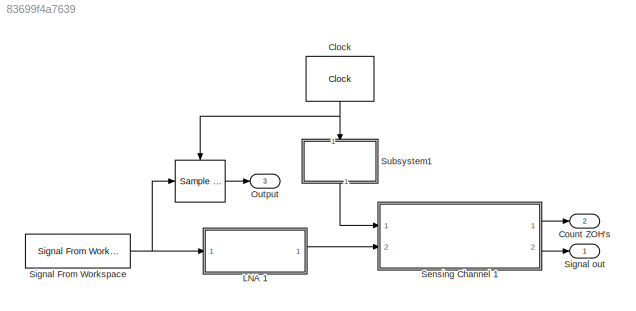
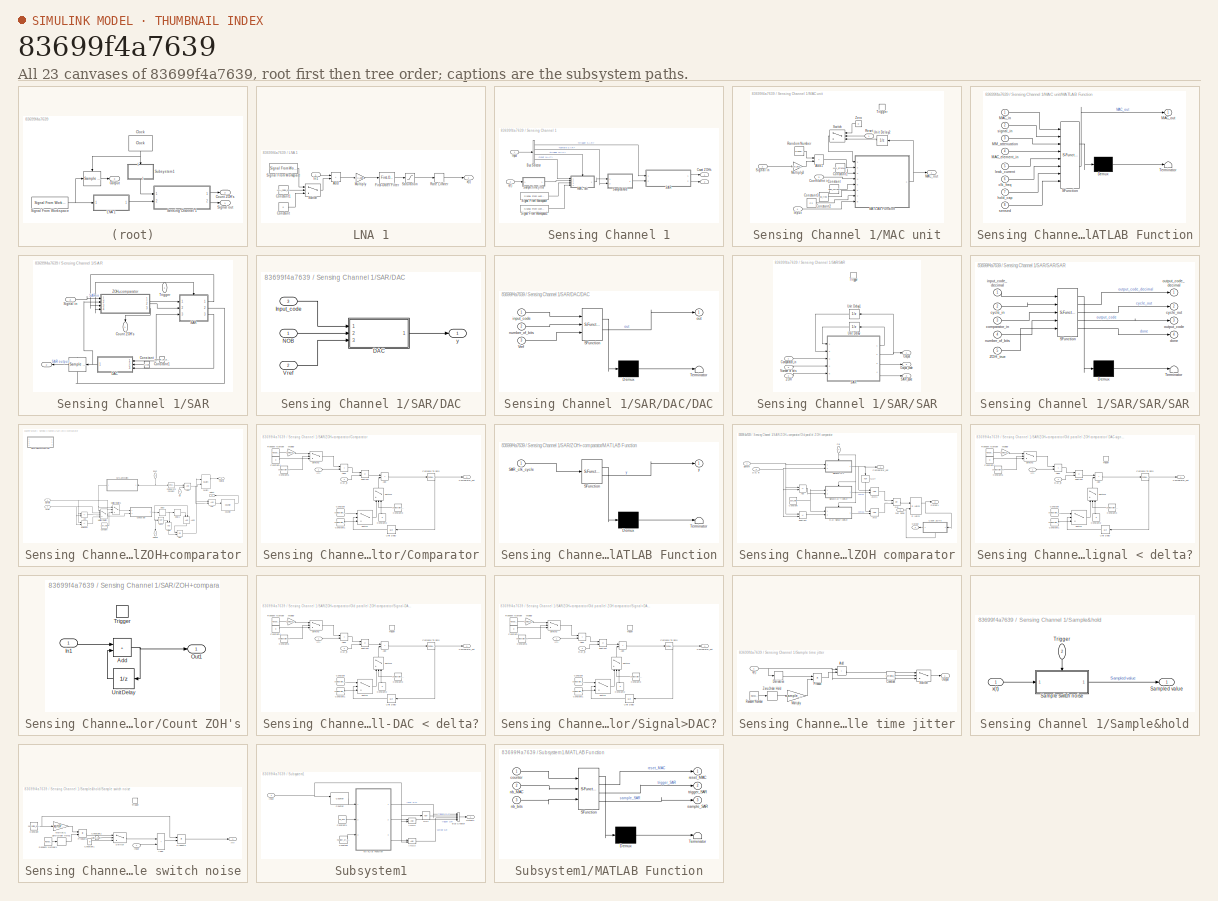
[diagram: thumbnail index - all 23 canvases of the model, root first then tree order]
MODEL slx_83699f4a7639
KIND model
CONFIG AbsTol = auto
CONFIG EnableMultiTasking = off
CONFIG FixedStep = auto
CONFIG MaxStep = auto
CONFIG MinStep = auto
CONFIG RelTol = 1e-3
CONFIG SampleTimeConstraint = Unconstrained
CONFIG Solver = VariableStepAuto
CONFIG SolverName = VariableStepAuto
CONFIG StartTime = 0.0
CONFIG StopTime = 1
BLOCK [Reference]              REF=dspsigops/Sample
and Hold
  Ports = [1, 1, 0, 1]
  SourceBlock = dspsigops/Sample\nand Hold
  SourceProductName = DSP System Toolbox
  SourceType = Sample and Hold
BLOCK [Reference] Clock  REF=simulink_extras/Flip Flops/Clock
  Ports = [0, 1]
  SourceBlock = simulink_extras/Flip Flops/Clock
  SourceProductBaseCode = SL
  SourceType = Digital clock
BLOCK [Outport] Count ZOH's
  Port = 2
BLOCK [SubSystem] LNA 1
  Ports = [1, 1]
  RequestExecContextInheritance = off
BLOCK [Sum] LNA 1/Add
  IconShape = rectangular
  Ports = [2, 1]
BLOCK [Constant] LNA 1/Constant
  Value = 0
BLOCK [Constant] LNA 1/Constant1
  Value = LNA_noise_on
BLOCK [Reference] LNA 1/First-Order Filter  REF=spsFirstOrderFilterLib/First-Order
Filter
  Ports = [1, 1]
  SourceBlock = spsFirstOrderFilterLib/First-Order\nFilter
  SourceProductBaseCode = PS
  SourceType = First-Order Filter
BLOCK [Inport] LNA 1/In1
BLOCK [Gain] LNA 1/Multiply
  Gain = LNA_gain
BLOCK [RateLimiter] LNA 1/Rate Limiter
  FallingSlewLimit = -LNA_SR
  InitialCondition = (LNA_noise_vector(1,1)+double(ADC_input(1,1)))*LNA_gain
  RisingSlewLimit = LNA_SR
  SampleTimeMode = inherited
BLOCK [Saturate] LNA 1/Saturation
  LowerLimit = 0
  UpperLimit = Vref
BLOCK [Reference] LNA 1/Signal From Workspace  REF=dspsrcs4/Signal From
Workspace
  Ports = [0, 1]
  SourceBlock = dspsrcs4/Signal From\nWorkspace
  SourceProductBaseCode = DS
  SourceType = Signal From Workspace
BLOCK [Switch] LNA 1/Switch
  Criteria = u2 > Threshold
  InputSameDT = off
  SaturateOnIntegerOverflow = off
BLOCK [Outport] LNA 1/x(t)
BLOCK [Outport] Output
  Port = 3
BLOCK [SubSystem] Sensing Channel 1
  Ports = [2, 2]
  RequestExecContextInheritance = off
BLOCK [Outport] Sensing Channel 1/ 
  Port = 2
BLOCK [BusSelector] Sensing Channel 1/Bus Selector
  OutputSignals = trigger SAR,sample SAR,trigger MAC,reset MAC
  Ports = [1, 4]
BLOCK [Outport] Sensing Channel 1/Count ZOH's
BLOCK [Inport] Sensing Channel 1/Input
BLOCK [SubSystem] Sensing Channel 1/MAC unit
  Ports = [4, 1, 0, 1]
  RequestExecContextInheritance = off
BLOCK [Sum] Sensing Channel 1/MAC unit/Add1
  IconShape = rectangular
  Ports = [2, 1]
BLOCK [Inport] Sensing Channel 1/MAC unit/Coefficient in
  Port = 3
BLOCK [Constant] Sensing Channel 1/MAC unit/Constant
  Value = leak_current
BLOCK [Constant] Sensing Channel 1/MAC unit/Constant1
  Value = MM_attenuation_coeff
BLOCK [Constant] Sensing Channel 1/MAC unit/Constant2
  Value = clk_freq
BLOCK [Constant] Sensing Channel 1/MAC unit/Constant3
  Value = C2
BLOCK [Inport] Sensing Channel 1/MAC unit/Input
  Port = 4
BLOCK [Outport] Sensing Channel 1/MAC unit/MAC_out
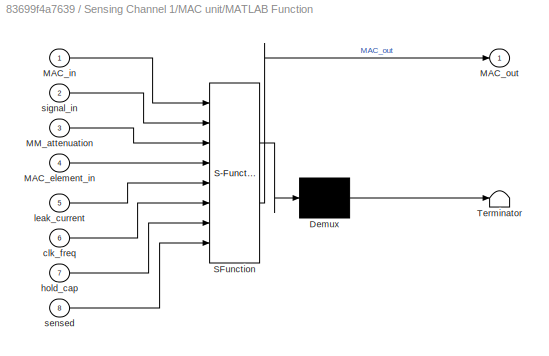
BLOCK [SubSystem] Sensing Channel 1/MAC unit/MATLAB Function
  ErrorFcn = Stateflow.Translate.translate
  PermitHierarchicalResolution = ExplicitOnly
  Ports = [8, 1]
  RequestExecContextInheritance = off
  SFBlockType = MATLAB Function
  TreatAsAtomicUnit = on
BLOCK [Demux] Sensing Channel 1/MAC unit/MATLAB Function/ Demux 
  Outputs = 1
  Ports = [1, 1]
BLOCK [S-Function] Sensing Channel 1/MAC unit/MATLAB Function/ SFunction 
  EnableBusSupport = on
  FunctionName = sf_sfun
  PortCounts = [8 2]
  Ports = [8, 2]
  SFcnIsStateOwnerBlock = off
  SFunctionDeploymentMode = off
  Tag = Stateflow S-Function 5
BLOCK [Terminator] Sensing Channel 1/MAC unit/MATLAB Function/ Terminator 
BLOCK [Inport] Sensing Channel 1/MAC unit/MATLAB Function/MAC_element_in
  Port = 4
BLOCK [Inport] Sensing Channel 1/MAC unit/MATLAB Function/MAC_in
BLOCK [Outport] Sensing Channel 1/MAC unit/MATLAB Function/MAC_out
BLOCK [Inport] Sensing Channel 1/MAC unit/MATLAB Function/MM_attenuation
  Port = 3
BLOCK [Inport] Sensing Channel 1/MAC unit/MATLAB Function/clk_freq
  Port = 6
BLOCK [Inport] Sensing Channel 1/MAC unit/MATLAB Function/hold_cap
  Port = 7
BLOCK [Inport] Sensing Channel 1/MAC unit/MATLAB Function/leak_current
  Port = 5
BLOCK [Inport] Sensing Channel 1/MAC unit/MATLAB Function/sensed
  Port = 8
BLOCK [Inport] Sensing Channel 1/MAC unit/MATLAB Function/signal_in
  Port = 2
BLOCK [Gain] Sensing Channel 1/MAC unit/Multiply3
  Gain = MM_incomplete_transfer_coeff
BLOCK [RandomNumber] Sensing Channel 1/MAC unit/Random Number
  Seed = 1*sim_number
  Variance = MM_sampling_noise
BLOCK [Inport] Sensing Channel 1/MAC unit/Reset
BLOCK [Inport] Sensing Channel 1/MAC unit/Signal in
  Port = 2
BLOCK [Switch] Sensing Channel 1/MAC unit/Switch
  Criteria = u2 > Threshold
  InputSameDT = off
  SaturateOnIntegerOverflow = off
BLOCK [TriggerPort] Sensing Channel 1/MAC unit/Trigger
  PortDimensions = 1
  Ports = []
  StatesWhenEnabling = held
  VariantControl = Variant
BLOCK [UnitDelay] Sensing Channel 1/MAC unit/Unit Delay2
  HasFrameUpgradeWarning = on
  InitialCondition = 1
  SampleTime = -1
BLOCK [Constant] Sensing Channel 1/MAC unit/Zero
  OutDataTypeStr = Inherit: Inherit via back propagation
  Value = 0
BLOCK [SubSystem] Sensing Channel 1/SAR
  Ports = [2, 2]
  RequestExecContextInheritance = off
BLOCK [Outport] Sensing Channel 1/SAR/ 
  Port = 2
BLOCK [Reference] Sensing Channel 1/SAR/             REF=dspsigops/Sample
and Hold
  Ports = [1, 1, 0, 1]
  SourceBlock = dspsigops/Sample\nand Hold
  SourceProductName = DSP System Toolbox
  SourceType = Sample and Hold
BLOCK [Constant] Sensing Channel 1/SAR/Constant
  Value = Vref
BLOCK [Constant] Sensing Channel 1/SAR/Constant1
  Value = number_of_bits
BLOCK [Outport] Sensing Channel 1/SAR/Count ZOH's
BLOCK [SubSystem] Sensing Channel 1/SAR/DAC
  Ports = [3, 1]
  RequestExecContextInheritance = off
  TreatAsAtomicUnit = on
BLOCK [SubSystem] Sensing Channel 1/SAR/DAC/DAC
  ErrorFcn = Stateflow.Translate.translate
  PermitHierarchicalResolution = ExplicitOnly
  Ports = [3, 1]
  RequestExecContextInheritance = off
  SFBlockType = MATLAB Function
  TreatAsAtomicUnit = on
BLOCK [Demux] Sensing Channel 1/SAR/DAC/DAC/ Demux 
  Outputs = 1
  Ports = [1, 1]
BLOCK [S-Function] Sensing Channel 1/SAR/DAC/DAC/ SFunction 
  EnableBusSupport = on
  FunctionName = sf_sfun
  PortCounts = [3 2]
  Ports = [3, 2]
  SFcnIsStateOwnerBlock = off
  SFunctionDeploymentMode = off
  Tag = Stateflow S-Function 2
BLOCK [Terminator] Sensing Channel 1/SAR/DAC/DAC/ Terminator 
BLOCK [Inport] Sensing Channel 1/SAR/DAC/DAC/Vref
  Port = 3
BLOCK [Inport] Sensing Channel 1/SAR/DAC/DAC/input_code
BLOCK [Inport] Sensing Channel 1/SAR/DAC/DAC/number_of_bits
  Port = 2
BLOCK [Outport] Sensing Channel 1/SAR/DAC/DAC/out
BLOCK [Inport] Sensing Channel 1/SAR/DAC/Input_code
  Port = 3
BLOCK [Inport] Sensing Channel 1/SAR/DAC/NOB
BLOCK [Inport] Sensing Channel 1/SAR/DAC/Vref
  Port = 2
BLOCK [Outport] Sensing Channel 1/SAR/DAC/y
BLOCK [SubSystem] Sensing Channel 1/SAR/SAR
  Ports = [3, 3, 0, 1]
  RequestExecContextInheritance = off
  TreatAsAtomicUnit = on
BLOCK [Inport] Sensing Channel 1/SAR/SAR/Comparator_in
  LatchByDelayingOutsideSignal = on
BLOCK [Inport] Sensing Channel 1/SAR/SAR/Number of bits
  Port = 3
BLOCK [Outport] Sensing Channel 1/SAR/SAR/Output
BLOCK [Outport] Sensing Channel 1/SAR/SAR/Output_code
  InitialOutput = zeros(number_of_bits, 1)
  Port = 3
  VarSizeSig = Yes
BLOCK [SubSystem] Sensing Channel 1/SAR/SAR/SAR
  ErrorFcn = Stateflow.Translate.translate
  PermitHierarchicalResolution = ExplicitOnly
  Ports = [5, 4]
  RequestExecContextInheritance = off
  SFBlockType = MATLAB Function
  TreatAsAtomicUnit = on
BLOCK [Demux] Sensing Channel 1/SAR/SAR/SAR/ Demux 
  Outputs = 1
  Ports = [1, 1]
BLOCK [S-Function] Sensing Channel 1/SAR/SAR/SAR/ SFunction 
  EnableBusSupport = on
  FunctionName = sf_sfun
  PortCounts = [5 5]
  Ports = [5, 5]
  SFcnIsStateOwnerBlock = off
  SFunctionDeploymentMode = off
  Tag = Stateflow S-Function 3
BLOCK [Terminator] Sensing Channel 1/SAR/SAR/SAR/ Terminator 
BLOCK [Inport] Sensing Channel 1/SAR/SAR/SAR/ZOH_true
  Port = 5
BLOCK [Inport] Sensing Channel 1/SAR/SAR/SAR/comparator_in
  Port = 3
BLOCK [Inport] Sensing Channel 1/SAR/SAR/SAR/cycle_in
  Port = 2
BLOCK [Outport] Sensing Channel 1/SAR/SAR/SAR/cycle_out
  Port = 2
BLOCK [Outport] Sensing Channel 1/SAR/SAR/SAR/done
  Port = 4
BLOCK [Inport] Sensing Channel 1/SAR/SAR/SAR/input_code_decimal
BLOCK [Inport] Sensing Channel 1/SAR/SAR/SAR/number_of_bits
  Port = 4
BLOCK [Outport] Sensing Channel 1/SAR/SAR/SAR/output_code
  Port = 3
BLOCK [Outport] Sensing Channel 1/SAR/SAR/SAR/output_code_decimal
BLOCK [Outport] Sensing Channel 1/SAR/SAR/SAR_done
  InitialOutput = 0
  Port = 2
BLOCK [TriggerPort] Sensing Channel 1/SAR/SAR/Trigger
  Ports = []
  StatesWhenEnabling = held
  VariantControl = Variant
BLOCK [UnitDelay] Sensing Channel 1/SAR/SAR/Unit Delay
  HasFrameUpgradeWarning = on
  SampleTime = -1
BLOCK [UnitDelay] Sensing Channel 1/SAR/SAR/Unit Delay1
  HasFrameUpgradeWarning = on
  SampleTime = -1
BLOCK [Inport] Sensing Channel 1/SAR/SAR/ZOH
  LatchByDelayingOutsideSignal = on
  Port = 2
BLOCK [Inport] Sensing Channel 1/SAR/Signal in
  Port = 2
BLOCK [Inport] Sensing Channel 1/SAR/Trigger
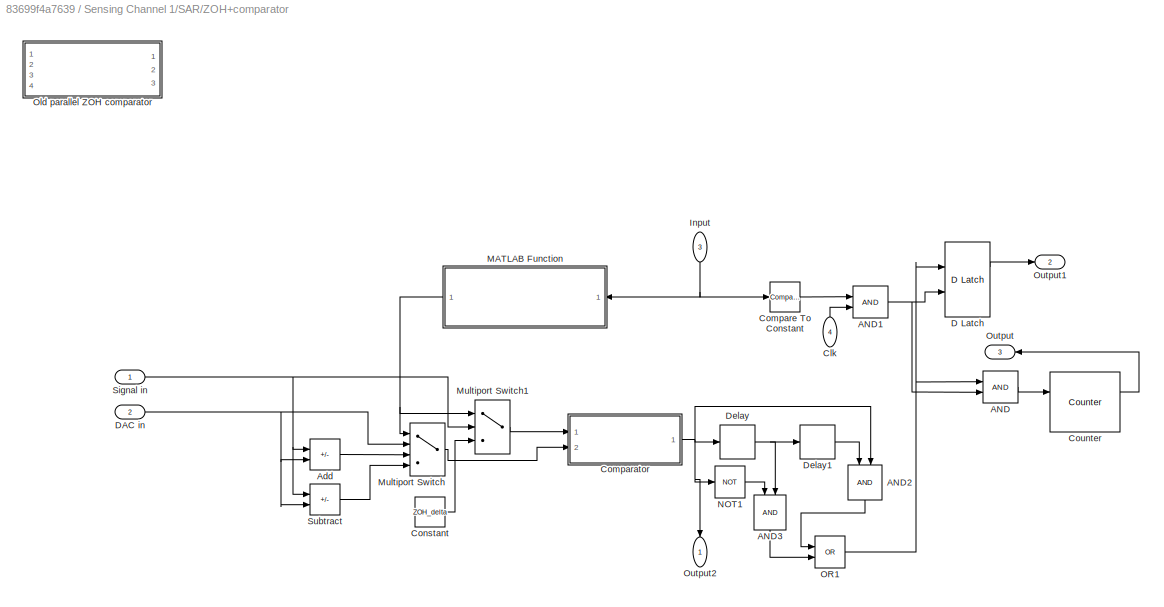
BLOCK [SubSystem] Sensing Channel 1/SAR/ZOH+comparator
  Ports = [4, 3]
  RequestExecContextInheritance = off
BLOCK [Logic] Sensing Channel 1/SAR/ZOH+comparator/AND
  AllPortsSameDT = off
  IconShape = distinctive
  OutDataTypeStr = boolean
  Ports = [2, 1]
BLOCK [Logic] Sensing Channel 1/SAR/ZOH+comparator/AND1
  AllPortsSameDT = off
  IconShape = distinctive
  OutDataTypeStr = boolean
  Ports = [2, 1]
BLOCK [Logic] Sensing Channel 1/SAR/ZOH+comparator/AND2
  AllPortsSameDT = off
  IconShape = distinctive
  OutDataTypeStr = boolean
  Ports = [2, 1]
BLOCK [Logic] Sensing Channel 1/SAR/ZOH+comparator/AND3
  AllPortsSameDT = off
  IconShape = distinctive
  OutDataTypeStr = boolean
  Ports = [2, 1]
BLOCK [Sum] Sensing Channel 1/SAR/ZOH+comparator/Add
  IconShape = rectangular
  Inputs = +-
  Ports = [2, 1]
BLOCK [Inport] Sensing Channel 1/SAR/ZOH+comparator/Clk
  Port = 4
BLOCK [SubSystem] Sensing Channel 1/SAR/ZOH+comparator/Comparator
  Ports = [2, 1]
  RequestExecContextInheritance = off
  TreatAsAtomicUnit = on
BLOCK [Sum] Sensing Channel 1/SAR/ZOH+comparator/Comparator/Add
  IconShape = rectangular
  Ports = [2, 1]
BLOCK [Sum] Sensing Channel 1/SAR/ZOH+comparator/Comparator/Add1
  IconShape = rectangular
  Ports = [2, 1]
BLOCK [Outport] Sensing Channel 1/SAR/ZOH+comparator/Comparator/Comparator_out
BLOCK [Reference] Sensing Channel 1/SAR/ZOH+comparator/Comparator/Compare To Zero  REF=simulink/Logic and Bit
Operations/Compare
To Zero
  Ports = [1, 1]
  SourceBlock = simulink/Logic and Bit\nOperations/Compare\nTo Zero
  SourceProductBaseCode = SL
  SourceType = Compare To Zero
BLOCK [Constant] Sensing Channel 1/SAR/ZOH+comparator/Comparator/Constant
  Value = comparator_high_offset
BLOCK [Constant] Sensing Channel 1/SAR/ZOH+comparator/Comparator/Constant1
  Value = comparator_low_offset
BLOCK [Constant] Sensing Channel 1/SAR/ZOH+comparator/Comparator/Constant2
  Value = 0
BLOCK [Constant] Sensing Channel 1/SAR/ZOH+comparator/Comparator/Constant3
  Value = comparator_offset_on
BLOCK [Constant] Sensing Channel 1/SAR/ZOH+comparator/Comparator/Constant4
  Value = 0
BLOCK [Constant] Sensing Channel 1/SAR/ZOH+comparator/Comparator/Constant5
  Value = comparator_noise_on
BLOCK [Inport] Sensing Channel 1/SAR/ZOH+comparator/Comparator/DAC_in
  Port = 2
BLOCK [Gain] Sensing Channel 1/SAR/ZOH+comparator/Comparator/Multiply
  Gain = comparator_noise_rms
BLOCK [RandomNumber] Sensing Channel 1/SAR/ZOH+comparator/Comparator/Random Number
  SampleTime = 1/clk_freq
  Seed = 4*sim_number
BLOCK [Sum] Sensing Channel 1/SAR/ZOH+comparator/Comparator/Subtract
  IconShape = rectangular
  Inputs = +-
  Ports = [2, 1]
BLOCK [Switch] Sensing Channel 1/SAR/ZOH+comparator/Comparator/Switch
  Criteria = u2 > Threshold
  InputSameDT = off
  SaturateOnIntegerOverflow = off
BLOCK [Switch] Sensing Channel 1/SAR/ZOH+comparator/Comparator/Switch1
  Criteria = u2 > Threshold
  InputSameDT = off
  SaturateOnIntegerOverflow = off
BLOCK [Switch] Sensing Channel 1/SAR/ZOH+comparator/Comparator/Switch2
  Criteria = u2 > Threshold
  InputSameDT = off
  SaturateOnIntegerOverflow = off
BLOCK [UnitDelay] Sensing Channel 1/SAR/ZOH+comparator/Comparator/Unit Delay
  HasFrameUpgradeWarning = on
  SampleTime = -1
BLOCK [Inport] Sensing Channel 1/SAR/ZOH+comparator/Comparator/y(t)
BLOCK [Reference] Sensing Channel 1/SAR/ZOH+comparator/Compare To Constant  REF=simulink/Logic and Bit
Operations/Compare
To Constant
  Ports = [1, 1]
  SourceBlock = simulink/Logic and Bit\nOperations/Compare\nTo Constant
  SourceProductBaseCode = SL
  SourceType = Compare To Constant
BLOCK [Constant] Sensing Channel 1/SAR/ZOH+comparator/Constant
  Value = ZOH_delta
BLOCK [Reference] Sensing Channel 1/SAR/ZOH+comparator/Counter  REF=dspswit3/Counter
  Ports = [2, 2]
  SourceBlock = dspswit3/Counter
  SourceProductBaseCode = DS
  SourceType = Counter
BLOCK [Reference] Sensing Channel 1/SAR/ZOH+comparator/D Latch  REF=simulink_extras/Flip Flops/D Latch
  Ports = [2, 2]
  SourceBlock = simulink_extras/Flip Flops/D Latch
  SourceProductBaseCode = SL
  SourceType = DLatch
BLOCK [Inport] Sensing Channel 1/SAR/ZOH+comparator/DAC in
  Port = 2
BLOCK [Delay] Sensing Channel 1/SAR/ZOH+comparator/Delay
  InputPortMap = u0
  Ports = [1, 1]
BLOCK [Delay] Sensing Channel 1/SAR/ZOH+comparator/Delay1
  InputPortMap = u0
  Ports = [1, 1]
BLOCK [Inport] Sensing Channel 1/SAR/ZOH+comparator/Input
  Port = 3
BLOCK [SubSystem] Sensing Channel 1/SAR/ZOH+comparator/MATLAB Function
  ErrorFcn = Stateflow.Translate.translate
  PermitHierarchicalResolution = ExplicitOnly
  Ports = [1, 1]
  RequestExecContextInheritance = off
  SFBlockType = MATLAB Function
  TreatAsAtomicUnit = on
BLOCK [Demux] Sensing Channel 1/SAR/ZOH+comparator/MATLAB Function/ Demux 
  Outputs = 1
  Ports = [1, 1]
BLOCK [S-Function] Sensing Channel 1/SAR/ZOH+comparator/MATLAB Function/ SFunction 
  EnableBusSupport = on
  FunctionName = sf_sfun
  PortCounts = [1 2]
  Ports = [1, 2]
  SFcnIsStateOwnerBlock = off
  SFunctionDeploymentMode = off
  Tag = Stateflow S-Function 1
BLOCK [Terminator] Sensing Channel 1/SAR/ZOH+comparator/MATLAB Function/ Terminator 
BLOCK [Inport] Sensing Channel 1/SAR/ZOH+comparator/MATLAB Function/SAR_clk_cycle
BLOCK [Outport] Sensing Channel 1/SAR/ZOH+comparator/MATLAB Function/y
BLOCK [MultiPortSwitch] Sensing Channel 1/SAR/ZOH+comparator/Multiport Switch
  InputSameDT = off
  Ports = [4, 1]
  SaturateOnIntegerOverflow = off
BLOCK [MultiPortSwitch] Sensing Channel 1/SAR/ZOH+comparator/Multiport Switch1
  DiagnosticForDefault = None
  InputSameDT = off
  Inputs = 2
  Ports = [3, 1]
  SaturateOnIntegerOverflow = off
BLOCK [Logic] Sensing Channel 1/SAR/ZOH+comparator/NOT1
  AllPortsSameDT = off
  IconShape = distinctive
  Operator = NOT
  OutDataTypeStr = boolean
  Ports = [1, 1]
BLOCK [Logic] Sensing Channel 1/SAR/ZOH+comparator/OR1
  AllPortsSameDT = off
  IconShape = distinctive
  Operator = OR
  OutDataTypeStr = boolean
  Ports = [2, 1]
BLOCK [SubSystem] Sensing Channel 1/SAR/ZOH+comparator/Old parallel ZOH comparator
  Commented = on
  Ports = [4, 3]
  RequestExecContextInheritance = off
BLOCK [SubSystem] Sensing Channel 1/SAR/ZOH+comparator/Old parallel ZOH comparator/ DAC-signal < delta?
  Ports = [2, 1, 0, 1]
  RequestExecContextInheritance = off
  TreatAsAtomicUnit = on
BLOCK [Sum] Sensing Channel 1/SAR/ZOH+comparator/Old parallel ZOH comparator/ DAC-signal < delta?/Add
  IconShape = rectangular
  Ports = [2, 1]
BLOCK [Sum] Sensing Channel 1/SAR/ZOH+comparator/Old parallel ZOH comparator/ DAC-signal < delta?/Add1
  IconShape = rectangular
  Ports = [2, 1]
BLOCK [Outport] Sensing Channel 1/SAR/ZOH+comparator/Old parallel ZOH comparator/ DAC-signal < delta?/Comparator_out
BLOCK [Reference] Sensing Channel 1/SAR/ZOH+comparator/Old parallel ZOH comparator/ DAC-signal < delta?/Compare To Zero  REF=simulink/Logic and Bit
Operations/Compare
To Zero
  Ports = [1, 1]
  SourceBlock = simulink/Logic and Bit\nOperations/Compare\nTo Zero
  SourceProductBaseCode = SL
  SourceType = Compare To Zero
BLOCK [Constant] Sensing Channel 1/SAR/ZOH+comparator/Old parallel ZOH comparator/ DAC-signal < delta?/Constant
  Value = comparator_high_offset
BLOCK [Constant] Sensing Channel 1/SAR/ZOH+comparator/Old parallel ZOH comparator/ DAC-signal < delta?/Constant1
  Value = comparator_low_offset
BLOCK [Constant] Sensing Channel 1/SAR/ZOH+comparator/Old parallel ZOH comparator/ DAC-signal < delta?/Constant2
  Value = 0
BLOCK [Constant] Sensing Channel 1/SAR/ZOH+comparator/Old parallel ZOH comparator/ DAC-signal < delta?/Constant3
  Value = comparator_offset_on
BLOCK [Constant] Sensing Channel 1/SAR/ZOH+comparator/Old parallel ZOH comparator/ DAC-signal < delta?/Constant4
  Value = 0
BLOCK [Constant] Sensing Channel 1/SAR/ZOH+comparator/Old parallel ZOH comparator/ DAC-signal < delta?/Constant5
  Value = comparator_noise_on
BLOCK [Inport] Sensing Channel 1/SAR/ZOH+comparator/Old parallel ZOH comparator/ DAC-signal < delta?/DAC_in
  Port = 2
BLOCK [Gain] Sensing Channel 1/SAR/ZOH+comparator/Old parallel ZOH comparator/ DAC-signal < delta?/Multiply
  Gain = comparator_noise_rms
BLOCK [RandomNumber] Sensing Channel 1/SAR/ZOH+comparator/Old parallel ZOH comparator/ DAC-signal < delta?/Random Number
BLOCK [Sum] Sensing Channel 1/SAR/ZOH+comparator/Old parallel ZOH comparator/ DAC-signal < delta?/Subtract
  IconShape = rectangular
  Inputs = +-
  Ports = [2, 1]
BLOCK [Switch] Sensing Channel 1/SAR/ZOH+comparator/Old parallel ZOH comparator/ DAC-signal < delta?/Switch
  Criteria = u2 > Threshold
  InputSameDT = off
  SaturateOnIntegerOverflow = off
BLOCK [Switch] Sensing Channel 1/SAR/ZOH+comparator/Old parallel ZOH comparator/ DAC-signal < delta?/Switch1
  Criteria = u2 > Threshold
  InputSameDT = off
  SaturateOnIntegerOverflow = off
BLOCK [Switch] Sensing Channel 1/SAR/ZOH+comparator/Old parallel ZOH comparator/ DAC-signal < delta?/Switch2
  Criteria = u2 > Threshold
  InputSameDT = off
  SaturateOnIntegerOverflow = off
BLOCK [TriggerPort] Sensing Channel 1/SAR/ZOH+comparator/Old parallel ZOH comparator/ DAC-signal < delta?/Trigger
  Ports = []
  StatesWhenEnabling = held
  VariantControl = Variant
BLOCK [UnitDelay] Sensing Channel 1/SAR/ZOH+comparator/Old parallel ZOH comparator/ DAC-signal < delta?/Unit Delay
  HasFrameUpgradeWarning = on
  SampleTime = -1
BLOCK [Inport] Sensing Channel 1/SAR/ZOH+comparator/Old parallel ZOH comparator/ DAC-signal < delta?/y(t)
BLOCK [Logic] Sensing Channel 1/SAR/ZOH+comparator/Old parallel ZOH comparator/AND
  AllPortsSameDT = off
  IconShape = distinctive
  OutDataTypeStr = boolean
  Ports = [2, 1]
BLOCK [Logic] Sensing Channel 1/SAR/ZOH+comparator/Old parallel ZOH comparator/AND1
  AllPortsSameDT = off
  IconShape = distinctive
  OutDataTypeStr = boolean
  Ports = [2, 1]
BLOCK [Sum] Sensing Channel 1/SAR/ZOH+comparator/Old parallel ZOH comparator/Add
  IconShape = rectangular
  Inputs = +-
  Ports = [2, 1]
BLOCK [Inport] Sensing Channel 1/SAR/ZOH+comparator/Old parallel ZOH comparator/Clk
  Port = 4
BLOCK [Outport] Sensing Channel 1/SAR/ZOH+comparator/Old parallel ZOH comparator/Comparator_out
BLOCK [Constant] Sensing Channel 1/SAR/ZOH+comparator/Old parallel ZOH comparator/Constant
  Value = ZOH_delta
BLOCK [SubSystem] Sensing Channel 1/SAR/ZOH+comparator/Old parallel ZOH comparator/Count ZOH's
  Ports = [1, 1, 0, 1]
  RequestExecContextInheritance = off
BLOCK [Sum] Sensing Channel 1/SAR/ZOH+comparator/Old parallel ZOH comparator/Count ZOH's/Add
  AccumDataTypeStr = double
  IconShape = rectangular
  OutDataTypeStr = double
  Ports = [2, 1]
BLOCK [Inport] Sensing Channel 1/SAR/ZOH+comparator/Old parallel ZOH comparator/Count ZOH's/In1
BLOCK [Outport] Sensing Channel 1/SAR/ZOH+comparator/Old parallel ZOH comparator/Count ZOH's/Out1
BLOCK [TriggerPort] Sensing Channel 1/SAR/ZOH+comparator/Old parallel ZOH comparator/Count ZOH's/Trigger
  PortDimensions = 1
  Ports = []
  StatesWhenEnabling = held
  VariantControl = Variant
BLOCK [UnitDelay] Sensing Channel 1/SAR/ZOH+comparator/Old parallel ZOH comparator/Count ZOH's/Unit Delay
  HasFrameUpgradeWarning = on
  SampleTime = -1
BLOCK [Reference] Sensing Channel 1/SAR/ZOH+comparator/Old parallel ZOH comparator/D Latch  REF=simulink_extras/Flip Flops/D Latch
  Ports = [2, 2]
  SourceBlock = simulink_extras/Flip Flops/D Latch
  SourceProductBaseCode = SL
  SourceType = DLatch
BLOCK [Inport] Sensing Channel 1/SAR/ZOH+comparator/Old parallel ZOH comparator/DAC in
  Port = 2
BLOCK [Logic] Sensing Channel 1/SAR/ZOH+comparator/Old parallel ZOH comparator/NOT
  AllPortsSameDT = off
  IconShape = distinctive
  Operator = NOT
  OutDataTypeStr = boolean
  Ports = [1, 1]
BLOCK [Logic] Sensing Channel 1/SAR/ZOH+comparator/Old parallel ZOH comparator/OR
  AllPortsSameDT = off
  IconShape = distinctive
  Operator = OR
  OutDataTypeStr = boolean
  Ports = [2, 1]
BLOCK [Outport] Sensing Channel 1/SAR/ZOH+comparator/Old parallel ZOH comparator/Output
  Port = 3
BLOCK [Outport] Sensing Channel 1/SAR/ZOH+comparator/Old parallel ZOH comparator/Output1
  Port = 2
BLOCK [Inport] Sensing Channel 1/SAR/ZOH+comparator/Old parallel ZOH comparator/SAR done
  Port = 3
BLOCK [Inport] Sensing Channel 1/SAR/ZOH+comparator/Old parallel ZOH comparator/Signal in
BLOCK [SubSystem] Sensing Channel 1/SAR/ZOH+comparator/Old parallel ZOH comparator/Signal-DAC < delta?
  Ports = [2, 1, 0, 1]
  RequestExecContextInheritance = off
  TreatAsAtomicUnit = on
BLOCK [Sum] Sensing Channel 1/SAR/ZOH+comparator/Old parallel ZOH comparator/Signal-DAC < delta?/Add
  IconShape = rectangular
  Ports = [2, 1]
BLOCK [Sum] Sensing Channel 1/SAR/ZOH+comparator/Old parallel ZOH comparator/Signal-DAC < delta?/Add1
  IconShape = rectangular
  Ports = [2, 1]
BLOCK [Outport] Sensing Channel 1/SAR/ZOH+comparator/Old parallel ZOH comparator/Signal-DAC < delta?/Comparator_out
BLOCK [Reference] Sensing Channel 1/SAR/ZOH+comparator/Old parallel ZOH comparator/Signal-DAC < delta?/Compare To Zero  REF=simulink/Logic and Bit
Operations/Compare
To Zero
  Ports = [1, 1]
  SourceBlock = simulink/Logic and Bit\nOperations/Compare\nTo Zero
  SourceProductBaseCode = SL
  SourceType = Compare To Zero
BLOCK [Constant] Sensing Channel 1/SAR/ZOH+comparator/Old parallel ZOH comparator/Signal-DAC < delta?/Constant
  Value = comparator_high_offset
BLOCK [Constant] Sensing Channel 1/SAR/ZOH+comparator/Old parallel ZOH comparator/Signal-DAC < delta?/Constant1
  Value = comparator_low_offset
BLOCK [Constant] Sensing Channel 1/SAR/ZOH+comparator/Old parallel ZOH comparator/Signal-DAC < delta?/Constant2
  Value = 0
BLOCK [Constant] Sensing Channel 1/SAR/ZOH+comparator/Old parallel ZOH comparator/Signal-DAC < delta?/Constant3
  Value = comparator_offset_on
BLOCK [Constant] Sensing Channel 1/SAR/ZOH+comparator/Old parallel ZOH comparator/Signal-DAC < delta?/Constant4
  Value = 0
BLOCK [Constant] Sensing Channel 1/SAR/ZOH+comparator/Old parallel ZOH comparator/Signal-DAC < delta?/Constant5
  Value = comparator_noise_on
BLOCK [Inport] Sensing Channel 1/SAR/ZOH+comparator/Old parallel ZOH comparator/Signal-DAC < delta?/DAC_in
  Port = 2
BLOCK [Gain] Sensing Channel 1/SAR/ZOH+comparator/Old parallel ZOH comparator/Signal-DAC < delta?/Multiply
  Gain = comparator_noise_rms
BLOCK [RandomNumber] Sensing Channel 1/SAR/ZOH+comparator/Old parallel ZOH comparator/Signal-DAC < delta?/Random Number
BLOCK [Sum] Sensing Channel 1/SAR/ZOH+comparator/Old parallel ZOH comparator/Signal-DAC < delta?/Subtract
  IconShape = rectangular
  Inputs = +-
  Ports = [2, 1]
BLOCK [Switch] Sensing Channel 1/SAR/ZOH+comparator/Old parallel ZOH comparator/Signal-DAC < delta?/Switch
  Criteria = u2 > Threshold
  InputSameDT = off
  SaturateOnIntegerOverflow = off
BLOCK [Switch] Sensing Channel 1/SAR/ZOH+comparator/Old parallel ZOH comparator/Signal-DAC < delta?/Switch1
  Criteria = u2 > Threshold
  InputSameDT = off
  SaturateOnIntegerOverflow = off
BLOCK [Switch] Sensing Channel 1/SAR/ZOH+comparator/Old parallel ZOH comparator/Signal-DAC < delta?/Switch2
  Criteria = u2 > Threshold
  InputSameDT = off
  SaturateOnIntegerOverflow = off
BLOCK [TriggerPort] Sensing Channel 1/SAR/ZOH+comparator/Old parallel ZOH comparator/Signal-DAC < delta?/Trigger
  Ports = []
  StatesWhenEnabling = held
  VariantControl = Variant
BLOCK [UnitDelay] Sensing Channel 1/SAR/ZOH+comparator/Old parallel ZOH comparator/Signal-DAC < delta?/Unit Delay
  HasFrameUpgradeWarning = on
  SampleTime = -1
BLOCK [Inport] Sensing Channel 1/SAR/ZOH+comparator/Old parallel ZOH comparator/Signal-DAC < delta?/y(t)
BLOCK [SubSystem] Sensing Channel 1/SAR/ZOH+comparator/Old parallel ZOH comparator/Signal>DAC?
  Ports = [2, 1, 0, 1]
  RequestExecContextInheritance = off
  TreatAsAtomicUnit = on
BLOCK [Sum] Sensing Channel 1/SAR/ZOH+comparator/Old parallel ZOH comparator/Signal>DAC?/Add
  IconShape = rectangular
  Ports = [2, 1]
BLOCK [Sum] Sensing Channel 1/SAR/ZOH+comparator/Old parallel ZOH comparator/Signal>DAC?/Add1
  IconShape = rectangular
  Ports = [2, 1]
BLOCK [Outport] Sensing Channel 1/SAR/ZOH+comparator/Old parallel ZOH comparator/Signal>DAC?/Comparator_out
BLOCK [Reference] Sensing Channel 1/SAR/ZOH+comparator/Old parallel ZOH comparator/Signal>DAC?/Compare To Zero  REF=simulink/Logic and Bit
Operations/Compare
To Zero
  Ports = [1, 1]
  SourceBlock = simulink/Logic and Bit\nOperations/Compare\nTo Zero
  SourceProductBaseCode = SL
  SourceType = Compare To Zero
BLOCK [Constant] Sensing Channel 1/SAR/ZOH+comparator/Old parallel ZOH comparator/Signal>DAC?/Constant
  Value = comparator_high_offset
BLOCK [Constant] Sensing Channel 1/SAR/ZOH+comparator/Old parallel ZOH comparator/Signal>DAC?/Constant1
  Value = comparator_low_offset
BLOCK [Constant] Sensing Channel 1/SAR/ZOH+comparator/Old parallel ZOH comparator/Signal>DAC?/Constant2
  Value = 0
BLOCK [Constant] Sensing Channel 1/SAR/ZOH+comparator/Old parallel ZOH comparator/Signal>DAC?/Constant3
  Value = comparator_offset_on
BLOCK [Constant] Sensing Channel 1/SAR/ZOH+comparator/Old parallel ZOH comparator/Signal>DAC?/Constant4
  Value = 0
BLOCK [Constant] Sensing Channel 1/SAR/ZOH+comparator/Old parallel ZOH comparator/Signal>DAC?/Constant5
  Value = comparator_noise_on
BLOCK [Inport] Sensing Channel 1/SAR/ZOH+comparator/Old parallel ZOH comparator/Signal>DAC?/DAC_in
  Port = 2
BLOCK [Gain] Sensing Channel 1/SAR/ZOH+comparator/Old parallel ZOH comparator/Signal>DAC?/Multiply
  Gain = comparator_noise_rms
BLOCK [RandomNumber] Sensing Channel 1/SAR/ZOH+comparator/Old parallel ZOH comparator/Signal>DAC?/Random Number
BLOCK [Sum] Sensing Channel 1/SAR/ZOH+comparator/Old parallel ZOH comparator/Signal>DAC?/Subtract
  IconShape = rectangular
  Inputs = +-
  Ports = [2, 1]
BLOCK [Switch] Sensing Channel 1/SAR/ZOH+comparator/Old parallel ZOH comparator/Signal>DAC?/Switch
  Criteria = u2 > Threshold
  InputSameDT = off
  SaturateOnIntegerOverflow = off
BLOCK [Switch] Sensing Channel 1/SAR/ZOH+comparator/Old parallel ZOH comparator/Signal>DAC?/Switch1
  Criteria = u2 > Threshold
  InputSameDT = off
  SaturateOnIntegerOverflow = off
BLOCK [Switch] Sensing Channel 1/SAR/ZOH+comparator/Old parallel ZOH comparator/Signal>DAC?/Switch2
  Criteria = u2 > Threshold
  InputSameDT = off
  SaturateOnIntegerOverflow = off
BLOCK [TriggerPort] Sensing Channel 1/SAR/ZOH+comparator/Old parallel ZOH comparator/Signal>DAC?/Trigger
  Ports = []
  StatesWhenEnabling = held
  VariantControl = Variant
BLOCK [UnitDelay] Sensing Channel 1/SAR/ZOH+comparator/Old parallel ZOH comparator/Signal>DAC?/Unit Delay
  HasFrameUpgradeWarning = on
  SampleTime = -1
BLOCK [Inport] Sensing Channel 1/SAR/ZOH+comparator/Old parallel ZOH comparator/Signal>DAC?/y(t)
BLOCK [Sum] Sensing Channel 1/SAR/ZOH+comparator/Old parallel ZOH comparator/Subtract
  IconShape = rectangular
  Inputs = -+
  Ports = [2, 1]
BLOCK [Outport] Sensing Channel 1/SAR/ZOH+comparator/Output
  Port = 3
BLOCK [Outport] Sensing Channel 1/SAR/ZOH+comparator/Output1
  Port = 2
BLOCK [Outport] Sensing Channel 1/SAR/ZOH+comparator/Output2
BLOCK [Inport] Sensing Channel 1/SAR/ZOH+comparator/Signal in
BLOCK [Sum] Sensing Channel 1/SAR/ZOH+comparator/Subtract
  IconShape = rectangular
  Inputs = -+
  Ports = [2, 1]
BLOCK [SubSystem] Sensing Channel 1/Sample time jitter
  Ports = [1, 1]
  RequestExecContextInheritance = off
BLOCK [Sum] Sensing Channel 1/Sample time jitter/Add
  IconShape = rectangular
  Ports = [2, 1]
BLOCK [Constant] Sensing Channel 1/Sample time jitter/Constant
  Value = sampling_jitter_on
BLOCK [Derivative] Sensing Channel 1/Sample time jitter/Derivative
BLOCK [Gain] Sensing Channel 1/Sample time jitter/Multiply
  Gain = sample_time_jitter
BLOCK [Outport] Sensing Channel 1/Sample time jitter/Output
BLOCK [Product] Sensing Channel 1/Sample time jitter/Product
  Ports = [2, 1]
BLOCK [RandomNumber] Sensing Channel 1/Sample time jitter/Random Number
  SampleTime = clk_period
  Seed = 2*sim_number
BLOCK [Switch] Sensing Channel 1/Sample time jitter/Switch
  Criteria = u2 > Threshold
  InputSameDT = off
  SaturateOnIntegerOverflow = off
BLOCK [ZeroOrderHold] Sensing Channel 1/Sample time jitter/Zero-Order Hold
  SampleTime = -1
BLOCK [Inport] Sensing Channel 1/Sample time jitter/x(t)
BLOCK [SubSystem] Sensing Channel 1/Sample&hold
  Ports = [2, 1]
  RequestExecContextInheritance = off
BLOCK [SubSystem] Sensing Channel 1/Sample&hold/Sample switch noise
  Ports = [1, 1, 0, 1]
  RequestExecContextInheritance = off
  TreatAsAtomicUnit = on
BLOCK [Sum] Sensing Channel 1/Sample&hold/Sample switch noise/Add1
  IconShape = rectangular
  Ports = [2, 1]
BLOCK [Constant] Sensing Channel 1/Sample&hold/Sample switch noise/Constant
  Value = sampling_gain
BLOCK [Constant] Sensing Channel 1/Sample&hold/Sample switch noise/Constant1
  Value = 0
BLOCK [Constant] Sensing Channel 1/Sample&hold/Sample switch noise/Constant2
  Value = switch_noise_on
BLOCK [Inport] Sensing Channel 1/Sample&hold/Sample switch noise/Input
BLOCK [Gain] Sensing Channel 1/Sample&hold/Sample switch noise/Multiply1
  Gain = sqrt(k*T/(sampling_gain*Cf_unit_cap*DAC_cap))
  OutDataTypeStr = Inherit: Same as input
BLOCK [Product] Sensing Channel 1/Sample&hold/Sample switch noise/Product1
  Ports = [2, 1]
BLOCK [Product] Sensing Channel 1/Sample&hold/Sample switch noise/Product2
  Ports = [2, 1]
BLOCK [RandomNumber] Sensing Channel 1/Sample&hold/Sample switch noise/Random Number1
  Seed = 3*sim_number
  Variance = switching_noise
BLOCK [Switch] Sensing Channel 1/Sample&hold/Sample switch noise/Switch
  Criteria = u2 > Threshold
  InputSameDT = off
  SaturateOnIntegerOverflow = off
BLOCK [TriggerPort] Sensing Channel 1/Sample&hold/Sample switch noise/Trigger
  Ports = []
  StatesWhenEnabling = held
  VariantControl = Variant
BLOCK [ZeroOrderHold] Sensing Channel 1/Sample&hold/Sample switch noise/Zero-Order Hold1
  SampleTime = -1
BLOCK [Outport] Sensing Channel 1/Sample&hold/Sample switch noise/y(t)
BLOCK [Outport] Sensing Channel 1/Sample&hold/Sampled value
BLOCK [Inport] Sensing Channel 1/Sample&hold/Trigger
  Port = 2
BLOCK [Inport] Sensing Channel 1/Sample&hold/x(t)
BLOCK [Reference] Sensing Channel 1/Signal From Workspace  REF=dspsrcs4/Signal From
Workspace
  Ports = [0, 1]
  SourceBlock = dspsrcs4/Signal From\nWorkspace
  SourceProductBaseCode = DS
  SourceType = Signal From Workspace
BLOCK [Reference] Sensing Channel 1/Signal From Workspace1  REF=dspsrcs4/Signal From
Workspace
  Ports = [0, 1]
  SourceBlock = dspsrcs4/Signal From\nWorkspace
  SourceProductBaseCode = DS
  SourceType = Signal From Workspace
BLOCK [Inport] Sensing Channel 1/x(t)
  Port = 2
BLOCK [Reference] Signal From Workspace  REF=dspsrcs4/Signal From
Workspace
  Ports = [0, 1]
  SourceBlock = dspsrcs4/Signal From\nWorkspace
  SourceProductBaseCode = DS
  SourceType = Signal From Workspace
BLOCK [Outport] Signal out
BLOCK [SubSystem] Subsystem1
  Ports = [1, 1]
  RequestExecContextInheritance = off
BLOCK [Logic] Subsystem1/AND2
  AllPortsSameDT = off
  IconShape = distinctive
  OutDataTypeStr = boolean
  Ports = [2, 1]
BLOCK [Logic] Subsystem1/AND3
  AllPortsSameDT = off
  IconShape = distinctive
  OutDataTypeStr = boolean
  Ports = [2, 1]
BLOCK [BusCreator] Subsystem1/Bus Creator
  DisplayOption = bar
  InheritFromInputs = on
  Inputs = 4
  Ports = [4, 1]
BLOCK [Constant] Subsystem1/Constant
  Value = number_of_bits
BLOCK [Constant] Subsystem1/Constant1
  Value = nb_MAC
BLOCK [Reference] Subsystem1/Counter  REF=dspswit3/Counter
  Ports = [2, 1]
  SourceBlock = dspswit3/Counter
  SourceProductBaseCode = DS
  SourceType = Counter
BLOCK [Inport] Subsystem1/Input
BLOCK [SubSystem] Subsystem1/MATLAB Function
  ErrorFcn = Stateflow.Translate.translate
  PermitHierarchicalResolution = ExplicitOnly
  Ports = [3, 3]
  RequestExecContextInheritance = off
  SFBlockType = MATLAB Function
  TreatAsAtomicUnit = on
BLOCK [Demux] Subsystem1/MATLAB Function/ Demux 
  Outputs = 1
  Ports = [1, 1]
BLOCK [S-Function] Subsystem1/MATLAB Function/ SFunction 
  EnableBusSupport = on
  FunctionName = sf_sfun
  PortCounts = [3 4]
  Ports = [3, 4]
  SFcnIsStateOwnerBlock = off
  SFunctionDeploymentMode = off
  Tag = Stateflow S-Function 4
BLOCK [Terminator] Subsystem1/MATLAB Function/ Terminator 
BLOCK [Inport] Subsystem1/MATLAB Function/counter
BLOCK [Inport] Subsystem1/MATLAB Function/nb_MAC
  Port = 2
BLOCK [Inport] Subsystem1/MATLAB Function/nb_bits
  Port = 3
BLOCK [Outport] Subsystem1/MATLAB Function/reset_MAC
BLOCK [Outport] Subsystem1/MATLAB Function/sample_SAR
  Port = 3
BLOCK [Outport] Subsystem1/MATLAB Function/trigger_SAR
  Port = 2
BLOCK [Logic] Subsystem1/NOT
  AllPortsSameDT = off
  IconShape = distinctive
  Operator = NOT
  OutDataTypeStr = boolean
  Ports = [1, 1]
BLOCK [Outport] Subsystem1/Output4
LINE            :1 -> Output:1
NET Clock:1 ->            :trigger, Subsystem1:1
LINE LNA 1/Add:1 -> LNA 1/Multiply:1
LINE LNA 1/Constant1:1 -> LNA 1/Switch:2
LINE LNA 1/Constant:1 -> LNA 1/Switch:3
LINE LNA 1/First-Order Filter:1 -> LNA 1/Saturation:1
LINE LNA 1/In1:1 -> LNA 1/Add:1
LINE LNA 1/Multiply:1 -> LNA 1/First-Order Filter:1
LINE LNA 1/Rate Limiter:1 -> LNA 1/x(t):1
LINE LNA 1/Saturation:1 -> LNA 1/Rate Limiter:1
LINE LNA 1/Signal From Workspace:1 -> LNA 1/Switch:1
LINE LNA 1/Switch:1 -> LNA 1/Add:2
LINE LNA 1:1 -> Sensing Channel 1:2
LINE Sensing Channel 1/Bus Selector:1 -> Sensing Channel 1/SAR:1
LINE Sensing Channel 1/Bus Selector:2 -> Sensing Channel 1/Sample&hold:2
LINE Sensing Channel 1/Bus Selector:3 -> Sensing Channel 1/MAC unit:trigger
LINE Sensing Channel 1/Bus Selector:4 -> Sensing Channel 1/MAC unit:1
LINE Sensing Channel 1/Input:1 -> Sensing Channel 1/Bus Selector:1
LINE Sensing Channel 1/MAC unit/Add1:1 -> Sensing Channel 1/MAC unit/MATLAB Function:2
LINE Sensing Channel 1/MAC unit/Coefficient in:1 -> Sensing Channel 1/MAC unit/MATLAB Function:4
LINE Sensing Channel 1/MAC unit/Constant1:1 -> Sensing Channel 1/MAC unit/MATLAB Function:3
LINE Sensing Channel 1/MAC unit/Constant2:1 -> Sensing Channel 1/MAC unit/MATLAB Function:6
LINE Sensing Channel 1/MAC unit/Constant3:1 -> Sensing Channel 1/MAC unit/MATLAB Function:7
LINE Sensing Channel 1/MAC unit/Constant:1 -> Sensing Channel 1/MAC unit/MATLAB Function:5
LINE Sensing Channel 1/MAC unit/Input:1 -> Sensing Channel 1/MAC unit/MATLAB Function:8
NET Sensing Channel 1/MAC unit/MATLAB Function:1 -> Sensing Channel 1/MAC unit/MAC_out:1, Sensing Channel 1/MAC unit/Unit Delay2:1
LINE Sensing Channel 1/MAC unit/Multiply3:1 -> Sensing Channel 1/MAC unit/Add1:2
LINE Sensing Channel 1/MAC unit/Random Number:1 -> Sensing Channel 1/MAC unit/Add1:1
LINE Sensing Channel 1/MAC unit/Reset:1 -> Sensing Channel 1/MAC unit/Switch:2
LINE Sensing Channel 1/MAC unit/Signal in:1 -> Sensing Channel 1/MAC unit/Multiply3:1
LINE Sensing Channel 1/MAC unit/Switch:1 -> Sensing Channel 1/MAC unit/MATLAB Function:1
LINE Sensing Channel 1/MAC unit/Unit Delay2:1 -> Sensing Channel 1/MAC unit/Switch:3
LINE Sensing Channel 1/MAC unit/Zero:1 -> Sensing Channel 1/MAC unit/Switch:1
LINE Sensing Channel 1/MAC unit:1 -> Sensing Channel 1/Sample&hold:1
LINE Sensing Channel 1/SAR/           :1 -> Sensing Channel 1/SAR/ :1
NET Sensing Channel 1/SAR/Constant1:1 -> Sensing Channel 1/SAR/DAC:1, Sensing Channel 1/SAR/SAR:3
LINE Sensing Channel 1/SAR/Constant:1 -> Sensing Channel 1/SAR/DAC:2
LINE Sensing Channel 1/SAR/DAC/DAC:1 -> Sensing Channel 1/SAR/DAC/y:1
LINE Sensing Channel 1/SAR/DAC/Input_code:1 -> Sensing Channel 1/SAR/DAC/DAC:1
LINE Sensing Channel 1/SAR/DAC/NOB:1 -> Sensing Channel 1/SAR/DAC/DAC:2
LINE Sensing Channel 1/SAR/DAC/Vref:1 -> Sensing Channel 1/SAR/DAC/DAC:3
NET Sensing Channel 1/SAR/DAC:1 -> Sensing Channel 1/SAR/           :1, Sensing Channel 1/SAR/ZOH+comparator:2
LINE Sensing Channel 1/SAR/SAR/Comparator_in:1 -> Sensing Channel 1/SAR/SAR/SAR:3
LINE Sensing Channel 1/SAR/SAR/Number of bits:1 -> Sensing Channel 1/SAR/SAR/SAR:4
LINE Sensing Channel 1/SAR/SAR/SAR:1 -> Sensing Channel 1/SAR/SAR/Unit Delay:1
NET Sensing Channel 1/SAR/SAR/SAR:2 -> Sensing Channel 1/SAR/SAR/Output:1, Sensing Channel 1/SAR/SAR/Unit Delay1:1
LINE Sensing Channel 1/SAR/SAR/SAR:3 -> Sensing Channel 1/SAR/SAR/Output_code:1
LINE Sensing Channel 1/SAR/SAR/SAR:4 -> Sensing Channel 1/SAR/SAR/SAR_done:1
LINE Sensing Channel 1/SAR/SAR/Unit Delay1:1 -> Sensing Channel 1/SAR/SAR/SAR:2
LINE Sensing Channel 1/SAR/SAR/Unit Delay:1 -> Sensing Channel 1/SAR/SAR/SAR:1
LINE Sensing Channel 1/SAR/SAR/ZOH:1 -> Sensing Channel 1/SAR/SAR/SAR:5
LINE Sensing Channel 1/SAR/SAR:1 -> Sensing Channel 1/SAR/ZOH+comparator:3
LINE Sensing Channel 1/SAR/SAR:2 -> Sensing Channel 1/SAR/           :trigger
LINE Sensing Channel 1/SAR/SAR:3 -> Sensing Channel 1/SAR/DAC:3
LINE Sensing Channel 1/SAR/Signal in:1 -> Sensing Channel 1/SAR/ZOH+comparator:1
NET Sensing Channel 1/SAR/Trigger:1 -> Sensing Channel 1/SAR/SAR:trigger, Sensing Channel 1/SAR/ZOH+comparator:4
NET Sensing Channel 1/SAR/ZOH+comparator/AND1:1 -> Sensing Channel 1/SAR/ZOH+comparator/AND:2, Sensing Channel 1/SAR/ZOH+comparator/D Latch:2
LINE Sensing Channel 1/SAR/ZOH+comparator/AND2:1 -> Sensing Channel 1/SAR/ZOH+comparator/OR1:1
LINE Sensing Channel 1/SAR/ZOH+comparator/AND3:1 -> Sensing Channel 1/SAR/ZOH+comparator/OR1:2
LINE Sensing Channel 1/SAR/ZOH+comparator/AND:1 -> Sensing Channel 1/SAR/ZOH+comparator/Counter:1
LINE Sensing Channel 1/SAR/ZOH+comparator/Add:1 -> Sensing Channel 1/SAR/ZOH+comparator/Multiport Switch:3
LINE Sensing Channel 1/SAR/ZOH+comparator/Clk:1 -> Sensing Channel 1/SAR/ZOH+comparator/AND1:2
LINE Sensing Channel 1/SAR/ZOH+comparator/Comparator/Add1:1 -> Sensing Channel 1/SAR/ZOH+comparator/Comparator/Subtract:1
LINE Sensing Channel 1/SAR/ZOH+comparator/Comparator/Add:1 -> Sensing Channel 1/SAR/ZOH+comparator/Comparator/Compare To Zero:1
NET Sensing Channel 1/SAR/ZOH+comparator/Comparator/Compare To Zero:1 -> Sensing Channel 1/SAR/ZOH+comparator/Comparator/Comparator_out:1, Sensing Channel 1/SAR/ZOH+comparator/Comparator/Unit Delay:1
LINE Sensing Channel 1/SAR/ZOH+comparator/Comparator/Constant1:1 -> Sensing Channel 1/SAR/ZOH+comparator/Comparator/Switch:3
LINE Sensing Channel 1/SAR/ZOH+comparator/Comparator/Constant2:1 -> Sensing Channel 1/SAR/ZOH+comparator/Comparator/Switch1:3
LINE Sensing Channel 1/SAR/ZOH+comparator/Comparator/Constant3:1 -> Sensing Channel 1/SAR/ZOH+comparator/Comparator/Switch1:2
LINE Sensing Channel 1/SAR/ZOH+comparator/Comparator/Constant4:1 -> Sensing Channel 1/SAR/ZOH+comparator/Comparator/Switch2:3
LINE Sensing Channel 1/SAR/ZOH+comparator/Comparator/Constant5:1 -> Sensing Channel 1/SAR/ZOH+comparator/Comparator/Switch2:2
LINE Sensing Channel 1/SAR/ZOH+comparator/Comparator/Constant:1 -> Sensing Channel 1/SAR/ZOH+comparator/Comparator/Switch:1
LINE Sensing Channel 1/SAR/ZOH+comparator/Comparator/DAC_in:1 -> Sensing Channel 1/SAR/ZOH+comparator/Comparator/Subtract:2
LINE Sensing Channel 1/SAR/ZOH+comparator/Comparator/Multiply:1 -> Sensing Channel 1/SAR/ZOH+comparator/Comparator/Switch2:1
LINE Sensing Channel 1/SAR/ZOH+comparator/Comparator/Random Number:1 -> Sensing Channel 1/SAR/ZOH+comparator/Comparator/Multiply:1
LINE Sensing Channel 1/SAR/ZOH+comparator/Comparator/Subtract:1 -> Sensing Channel 1/SAR/ZOH+comparator/Comparator/Add:1
LINE Sensing Channel 1/SAR/ZOH+comparator/Comparator/Switch1:1 -> Sensing Channel 1/SAR/ZOH+comparator/Comparator/Add:2
LINE Sensing Channel 1/SAR/ZOH+comparator/Comparator/Switch2:1 -> Sensing Channel 1/SAR/ZOH+comparator/Comparator/Add1:1
LINE Sensing Channel 1/SAR/ZOH+comparator/Comparator/Switch:1 -> Sensing Channel 1/SAR/ZOH+comparator/Comparator/Switch1:1
LINE Sensing Channel 1/SAR/ZOH+comparator/Comparator/Unit Delay:1 -> Sensing Channel 1/SAR/ZOH+comparator/Comparator/Switch:2
LINE Sensing Channel 1/SAR/ZOH+comparator/Comparator/y(t):1 -> Sensing Channel 1/SAR/ZOH+comparator/Comparator/Add1:2
NET Sensing Channel 1/SAR/ZOH+comparator/Comparator:1 -> Sensing Channel 1/SAR/ZOH+comparator/AND2:2, Sensing Channel 1/SAR/ZOH+comparator/Delay:1, Sensing Channel 1/SAR/ZOH+comparator/NOT1:1, Sensing Channel 1/SAR/ZOH+comparator/Output2:1
LINE Sensing Channel 1/SAR/ZOH+comparator/Compare To Constant:1 -> Sensing Channel 1/SAR/ZOH+comparator/AND1:1
LINE Sensing Channel 1/SAR/ZOH+comparator/Constant:1 -> Sensing Channel 1/SAR/ZOH+comparator/Multiport Switch1:3
LINE Sensing Channel 1/SAR/ZOH+comparator/Counter:1 -> Sensing Channel 1/SAR/ZOH+comparator/Output:1
LINE Sensing Channel 1/SAR/ZOH+comparator/D Latch:1 -> Sensing Channel 1/SAR/ZOH+comparator/Output1:1
NET Sensing Channel 1/SAR/ZOH+comparator/DAC in:1 -> Sensing Channel 1/SAR/ZOH+comparator/Add:2, Sensing Channel 1/SAR/ZOH+comparator/Multiport Switch:2, Sensing Channel 1/SAR/ZOH+comparator/Subtract:2
LINE Sensing Channel 1/SAR/ZOH+comparator/Delay1:1 -> Sensing Channel 1/SAR/ZOH+comparator/AND2:1
NET Sensing Channel 1/SAR/ZOH+comparator/Delay:1 -> Sensing Channel 1/SAR/ZOH+comparator/AND3:2, Sensing Channel 1/SAR/ZOH+comparator/Delay1:1
NET Sensing Channel 1/SAR/ZOH+comparator/Input:1 -> Sensing Channel 1/SAR/ZOH+comparator/Compare To Constant:1, Sensing Channel 1/SAR/ZOH+comparator/MATLAB Function:1
NET Sensing Channel 1/SAR/ZOH+comparator/MATLAB Function:1 -> Sensing Channel 1/SAR/ZOH+comparator/Multiport Switch1:1, Sensing Channel 1/SAR/ZOH+comparator/Multiport Switch:1
LINE Sensing Channel 1/SAR/ZOH+comparator/Multiport Switch1:1 -> Sensing Channel 1/SAR/ZOH+comparator/Comparator:1
LINE Sensing Channel 1/SAR/ZOH+comparator/Multiport Switch:1 -> Sensing Channel 1/SAR/ZOH+comparator/Comparator:2
LINE Sensing Channel 1/SAR/ZOH+comparator/NOT1:1 -> Sensing Channel 1/SAR/ZOH+comparator/AND3:1
NET Sensing Channel 1/SAR/ZOH+comparator/OR1:1 -> Sensing Channel 1/SAR/ZOH+comparator/AND:1, Sensing Channel 1/SAR/ZOH+comparator/D Latch:1
LINE Sensing Channel 1/SAR/ZOH+comparator/Old parallel ZOH comparator/ DAC-signal < delta?/Add1:1 -> Sensing Channel 1/SAR/ZOH+comparator/Old parallel ZOH comparator/ DAC-signal < delta?/Subtract:1
LINE Sensing Channel 1/SAR/ZOH+comparator/Old parallel ZOH comparator/ DAC-signal < delta?/Add:1 -> Sensing Channel 1/SAR/ZOH+comparator/Old parallel ZOH comparator/ DAC-signal < delta?/Compare To Zero:1
NET Sensing Channel 1/SAR/ZOH+comparator/Old parallel ZOH comparator/ DAC-signal < delta?/Compare To Zero:1 -> Sensing Channel 1/SAR/ZOH+comparator/Old parallel ZOH comparator/ DAC-signal < delta?/Comparator_out:1, Sensing Channel 1/SAR/ZOH+comparator/Old parallel ZOH comparator/ DAC-signal < delta?/Unit Delay:1
LINE Sensing Channel 1/SAR/ZOH+comparator/Old parallel ZOH comparator/ DAC-signal < delta?/Constant1:1 -> Sensing Channel 1/SAR/ZOH+comparator/Old parallel ZOH comparator/ DAC-signal < delta?/Switch:3
LINE Sensing Channel 1/SAR/ZOH+comparator/Old parallel ZOH comparator/ DAC-signal < delta?/Constant2:1 -> Sensing Channel 1/SAR/ZOH+comparator/Old parallel ZOH comparator/ DAC-signal < delta?/Switch1:3
LINE Sensing Channel 1/SAR/ZOH+comparator/Old parallel ZOH comparator/ DAC-signal < delta?/Constant3:1 -> Sensing Channel 1/SAR/ZOH+comparator/Old parallel ZOH comparator/ DAC-signal < delta?/Switch1:2
LINE Sensing Channel 1/SAR/ZOH+comparator/Old parallel ZOH comparator/ DAC-signal < delta?/Constant4:1 -> Sensing Channel 1/SAR/ZOH+comparator/Old parallel ZOH comparator/ DAC-signal < delta?/Switch2:3
LINE Sensing Channel 1/SAR/ZOH+comparator/Old parallel ZOH comparator/ DAC-signal < delta?/Constant5:1 -> Sensing Channel 1/SAR/ZOH+comparator/Old parallel ZOH comparator/ DAC-signal < delta?/Switch2:2
LINE Sensing Channel 1/SAR/ZOH+comparator/Old parallel ZOH comparator/ DAC-signal < delta?/Constant:1 -> Sensing Channel 1/SAR/ZOH+comparator/Old parallel ZOH comparator/ DAC-signal < delta?/Switch:1
LINE Sensing Channel 1/SAR/ZOH+comparator/Old parallel ZOH comparator/ DAC-signal < delta?/DAC_in:1 -> Sensing Channel 1/SAR/ZOH+comparator/Old parallel ZOH comparator/ DAC-signal < delta?/Subtract:2
LINE Sensing Channel 1/SAR/ZOH+comparator/Old parallel ZOH comparator/ DAC-signal < delta?/Multiply:1 -> Sensing Channel 1/SAR/ZOH+comparator/Old parallel ZOH comparator/ DAC-signal < delta?/Switch2:1
LINE Sensing Channel 1/SAR/ZOH+comparator/Old parallel ZOH comparator/ DAC-signal < delta?/Random Number:1 -> Sensing Channel 1/SAR/ZOH+comparator/Old parallel ZOH comparator/ DAC-signal < delta?/Multiply:1
LINE Sensing Channel 1/SAR/ZOH+comparator/Old parallel ZOH comparator/ DAC-signal < delta?/Subtract:1 -> Sensing Channel 1/SAR/ZOH+comparator/Old parallel ZOH comparator/ DAC-signal < delta?/Add:1
LINE Sensing Channel 1/SAR/ZOH+comparator/Old parallel ZOH comparator/ DAC-signal < delta?/Switch1:1 -> Sensing Channel 1/SAR/ZOH+comparator/Old parallel ZOH comparator/ DAC-signal < delta?/Add:2
LINE Sensing Channel 1/SAR/ZOH+comparator/Old parallel ZOH comparator/ DAC-signal < delta?/Switch2:1 -> Sensing Channel 1/SAR/ZOH+comparator/Old parallel ZOH comparator/ DAC-signal < delta?/Add1:1
LINE Sensing Channel 1/SAR/ZOH+comparator/Old parallel ZOH comparator/ DAC-signal < delta?/Switch:1 -> Sensing Channel 1/SAR/ZOH+comparator/Old parallel ZOH comparator/ DAC-signal < delta?/Switch1:1
LINE Sensing Channel 1/SAR/ZOH+comparator/Old parallel ZOH comparator/ DAC-signal < delta?/Unit Delay:1 -> Sensing Channel 1/SAR/ZOH+comparator/Old parallel ZOH comparator/ DAC-signal < delta?/Switch:2
LINE Sensing Channel 1/SAR/ZOH+comparator/Old parallel ZOH comparator/ DAC-signal < delta?/y(t):1 -> Sensing Channel 1/SAR/ZOH+comparator/Old parallel ZOH comparator/ DAC-signal < delta?/Add1:2
LINE Sensing Channel 1/SAR/ZOH+comparator/Old parallel ZOH comparator/ DAC-signal < delta?:1 -> Sensing Channel 1/SAR/ZOH+comparator/Old parallel ZOH comparator/AND:2
LINE Sensing Channel 1/SAR/ZOH+comparator/Old parallel ZOH comparator/AND1:1 -> Sensing Channel 1/SAR/ZOH+comparator/Old parallel ZOH comparator/OR:1
LINE Sensing Channel 1/SAR/ZOH+comparator/Old parallel ZOH comparator/AND:1 -> Sensing Channel 1/SAR/ZOH+comparator/Old parallel ZOH comparator/OR:2
LINE Sensing Channel 1/SAR/ZOH+comparator/Old parallel ZOH comparator/Add:1 -> Sensing Channel 1/SAR/ZOH+comparator/Old parallel ZOH comparator/Signal-DAC < delta?:2
NET Sensing Channel 1/SAR/ZOH+comparator/Old parallel ZOH comparator/Clk:1 -> Sensing Channel 1/SAR/ZOH+comparator/Old parallel ZOH comparator/ DAC-signal < delta?:trigger, Sensing Channel 1/SAR/ZOH+comparator/Old parallel ZOH comparator/Signal-DAC < delta?:trigger, Sensing Channel 1/SAR/ZOH+comparator/Old parallel ZOH comparator/Signal>DAC?:trigger
NET Sensing Channel 1/SAR/ZOH+comparator/Old parallel ZOH comparator/Constant:1 -> Sensing Channel 1/SAR/ZOH+comparator/Old parallel ZOH comparator/ DAC-signal < delta?:1, Sensing Channel 1/SAR/ZOH+comparator/Old parallel ZOH comparator/Signal-DAC < delta?:1
NET Sensing Channel 1/SAR/ZOH+comparator/Old parallel ZOH comparator/Count ZOH's/Add:1 -> Sensing Channel 1/SAR/ZOH+comparator/Old parallel ZOH comparator/Count ZOH's/Out1:1, Sensing Channel 1/SAR/ZOH+comparator/Old parallel ZOH comparator/Count ZOH's/Unit Delay:1
LINE Sensing Channel 1/SAR/ZOH+comparator/Old parallel ZOH comparator/Count ZOH's/In1:1 -> Sensing Channel 1/SAR/ZOH+comparator/Old parallel ZOH comparator/Count ZOH's/Add:1
LINE Sensing Channel 1/SAR/ZOH+comparator/Old parallel ZOH comparator/Count ZOH's/Unit Delay:1 -> Sensing Channel 1/SAR/ZOH+comparator/Old parallel ZOH comparator/Count ZOH's/Add:2
LINE Sensing Channel 1/SAR/ZOH+comparator/Old parallel ZOH comparator/Count ZOH's:1 -> Sensing Channel 1/SAR/ZOH+comparator/Old parallel ZOH comparator/Output:1
NET Sensing Channel 1/SAR/ZOH+comparator/Old parallel ZOH comparator/D Latch:1 -> Sensing Channel 1/SAR/ZOH+comparator/Old parallel ZOH comparator/Count ZOH's:1, Sensing Channel 1/SAR/ZOH+comparator/Old parallel ZOH comparator/Output1:1
NET Sensing Channel 1/SAR/ZOH+comparator/Old parallel ZOH comparator/DAC in:1 -> Sensing Channel 1/SAR/ZOH+comparator/Old parallel ZOH comparator/Add:2, Sensing Channel 1/SAR/ZOH+comparator/Old parallel ZOH comparator/Signal>DAC?:2, Sensing Channel 1/SAR/ZOH+comparator/Old parallel ZOH comparator/Subtract:2
LINE Sensing Channel 1/SAR/ZOH+comparator/Old parallel ZOH comparator/NOT:1 -> Sensing Channel 1/SAR/ZOH+comparator/Old parallel ZOH comparator/AND:1
LINE Sensing Channel 1/SAR/ZOH+comparator/Old parallel ZOH comparator/OR:1 -> Sensing Channel 1/SAR/ZOH+comparator/Old parallel ZOH comparator/D Latch:1
NET Sensing Channel 1/SAR/ZOH+comparator/Old parallel ZOH comparator/SAR done:1 -> Sensing Channel 1/SAR/ZOH+comparator/Old parallel ZOH comparator/Count ZOH's:trigger, Sensing Channel 1/SAR/ZOH+comparator/Old parallel ZOH comparator/D Latch:2
NET Sensing Channel 1/SAR/ZOH+comparator/Old parallel ZOH comparator/Signal in:1 -> Sensing Channel 1/SAR/ZOH+comparator/Old parallel ZOH comparator/Add:1, Sensing Channel 1/SAR/ZOH+comparator/Old parallel ZOH comparator/Signal>DAC?:1, Sensing Channel 1/SAR/ZOH+comparator/Old parallel ZOH comparator/Subtract:1
LINE Sensing Channel 1/SAR/ZOH+comparator/Old parallel ZOH comparator/Signal-DAC < delta?/Add1:1 -> Sensing Channel 1/SAR/ZOH+comparator/Old parallel ZOH comparator/Signal-DAC < delta?/Subtract:1
LINE Sensing Channel 1/SAR/ZOH+comparator/Old parallel ZOH comparator/Signal-DAC < delta?/Add:1 -> Sensing Channel 1/SAR/ZOH+comparator/Old parallel ZOH comparator/Signal-DAC < delta?/Compare To Zero:1
NET Sensing Channel 1/SAR/ZOH+comparator/Old parallel ZOH comparator/Signal-DAC < delta?/Compare To Zero:1 -> Sensing Channel 1/SAR/ZOH+comparator/Old parallel ZOH comparator/Signal-DAC < delta?/Comparator_out:1, Sensing Channel 1/SAR/ZOH+comparator/Old parallel ZOH comparator/Signal-DAC < delta?/Unit Delay:1
LINE Sensing Channel 1/SAR/ZOH+comparator/Old parallel ZOH comparator/Signal-DAC < delta?/Constant1:1 -> Sensing Channel 1/SAR/ZOH+comparator/Old parallel ZOH comparator/Signal-DAC < delta?/Switch:3
LINE Sensing Channel 1/SAR/ZOH+comparator/Old parallel ZOH comparator/Signal-DAC < delta?/Constant2:1 -> Sensing Channel 1/SAR/ZOH+comparator/Old parallel ZOH comparator/Signal-DAC < delta?/Switch1:3
LINE Sensing Channel 1/SAR/ZOH+comparator/Old parallel ZOH comparator/Signal-DAC < delta?/Constant3:1 -> Sensing Channel 1/SAR/ZOH+comparator/Old parallel ZOH comparator/Signal-DAC < delta?/Switch1:2
LINE Sensing Channel 1/SAR/ZOH+comparator/Old parallel ZOH comparator/Signal-DAC < delta?/Constant4:1 -> Sensing Channel 1/SAR/ZOH+comparator/Old parallel ZOH comparator/Signal-DAC < delta?/Switch2:3
LINE Sensing Channel 1/SAR/ZOH+comparator/Old parallel ZOH comparator/Signal-DAC < delta?/Constant5:1 -> Sensing Channel 1/SAR/ZOH+comparator/Old parallel ZOH comparator/Signal-DAC < delta?/Switch2:2
LINE Sensing Channel 1/SAR/ZOH+comparator/Old parallel ZOH comparator/Signal-DAC < delta?/Constant:1 -> Sensing Channel 1/SAR/ZOH+comparator/Old parallel ZOH comparator/Signal-DAC < delta?/Switch:1
LINE Sensing Channel 1/SAR/ZOH+comparator/Old parallel ZOH comparator/Signal-DAC < delta?/DAC_in:1 -> Sensing Channel 1/SAR/ZOH+comparator/Old parallel ZOH comparator/Signal-DAC < delta?/Subtract:2
LINE Sensing Channel 1/SAR/ZOH+comparator/Old parallel ZOH comparator/Signal-DAC < delta?/Multiply:1 -> Sensing Channel 1/SAR/ZOH+comparator/Old parallel ZOH comparator/Signal-DAC < delta?/Switch2:1
LINE Sensing Channel 1/SAR/ZOH+comparator/Old parallel ZOH comparator/Signal-DAC < delta?/Random Number:1 -> Sensing Channel 1/SAR/ZOH+comparator/Old parallel ZOH comparator/Signal-DAC < delta?/Multiply:1
LINE Sensing Channel 1/SAR/ZOH+comparator/Old parallel ZOH comparator/Signal-DAC < delta?/Subtract:1 -> Sensing Channel 1/SAR/ZOH+comparator/Old parallel ZOH comparator/Signal-DAC < delta?/Add:1
LINE Sensing Channel 1/SAR/ZOH+comparator/Old parallel ZOH comparator/Signal-DAC < delta?/Switch1:1 -> Sensing Channel 1/SAR/ZOH+comparator/Old parallel ZOH comparator/Signal-DAC < delta?/Add:2
LINE Sensing Channel 1/SAR/ZOH+comparator/Old parallel ZOH comparator/Signal-DAC < delta?/Switch2:1 -> Sensing Channel 1/SAR/ZOH+comparator/Old parallel ZOH comparator/Signal-DAC < delta?/Add1:1
LINE Sensing Channel 1/SAR/ZOH+comparator/Old parallel ZOH comparator/Signal-DAC < delta?/Switch:1 -> Sensing Channel 1/SAR/ZOH+comparator/Old parallel ZOH comparator/Signal-DAC < delta?/Switch1:1
LINE Sensing Channel 1/SAR/ZOH+comparator/Old parallel ZOH comparator/Signal-DAC < delta?/Unit Delay:1 -> Sensing Channel 1/SAR/ZOH+comparator/Old parallel ZOH comparator/Signal-DAC < delta?/Switch:2
LINE Sensing Channel 1/SAR/ZOH+comparator/Old parallel ZOH comparator/Signal-DAC < delta?/y(t):1 -> Sensing Channel 1/SAR/ZOH+comparator/Old parallel ZOH comparator/Signal-DAC < delta?/Add1:2
LINE Sensing Channel 1/SAR/ZOH+comparator/Old parallel ZOH comparator/Signal-DAC < delta?:1 -> Sensing Channel 1/SAR/ZOH+comparator/Old parallel ZOH comparator/AND1:2
LINE Sensing Channel 1/SAR/ZOH+comparator/Old parallel ZOH comparator/Signal>DAC?/Add1:1 -> Sensing Channel 1/SAR/ZOH+comparator/Old parallel ZOH comparator/Signal>DAC?/Subtract:1
LINE Sensing Channel 1/SAR/ZOH+comparator/Old parallel ZOH comparator/Signal>DAC?/Add:1 -> Sensing Channel 1/SAR/ZOH+comparator/Old parallel ZOH comparator/Signal>DAC?/Compare To Zero:1
NET Sensing Channel 1/SAR/ZOH+comparator/Old parallel ZOH comparator/Signal>DAC?/Compare To Zero:1 -> Sensing Channel 1/SAR/ZOH+comparator/Old parallel ZOH comparator/Signal>DAC?/Comparator_out:1, Sensing Channel 1/SAR/ZOH+comparator/Old parallel ZOH comparator/Signal>DAC?/Unit Delay:1
LINE Sensing Channel 1/SAR/ZOH+comparator/Old parallel ZOH comparator/Signal>DAC?/Constant1:1 -> Sensing Channel 1/SAR/ZOH+comparator/Old parallel ZOH comparator/Signal>DAC?/Switch:3
LINE Sensing Channel 1/SAR/ZOH+comparator/Old parallel ZOH comparator/Signal>DAC?/Constant2:1 -> Sensing Channel 1/SAR/ZOH+comparator/Old parallel ZOH comparator/Signal>DAC?/Switch1:3
LINE Sensing Channel 1/SAR/ZOH+comparator/Old parallel ZOH comparator/Signal>DAC?/Constant3:1 -> Sensing Channel 1/SAR/ZOH+comparator/Old parallel ZOH comparator/Signal>DAC?/Switch1:2
LINE Sensing Channel 1/SAR/ZOH+comparator/Old parallel ZOH comparator/Signal>DAC?/Constant4:1 -> Sensing Channel 1/SAR/ZOH+comparator/Old parallel ZOH comparator/Signal>DAC?/Switch2:3
LINE Sensing Channel 1/SAR/ZOH+comparator/Old parallel ZOH comparator/Signal>DAC?/Constant5:1 -> Sensing Channel 1/SAR/ZOH+comparator/Old parallel ZOH comparator/Signal>DAC?/Switch2:2
LINE Sensing Channel 1/SAR/ZOH+comparator/Old parallel ZOH comparator/Signal>DAC?/Constant:1 -> Sensing Channel 1/SAR/ZOH+comparator/Old parallel ZOH comparator/Signal>DAC?/Switch:1
LINE Sensing Channel 1/SAR/ZOH+comparator/Old parallel ZOH comparator/Signal>DAC?/DAC_in:1 -> Sensing Channel 1/SAR/ZOH+comparator/Old parallel ZOH comparator/Signal>DAC?/Subtract:2
LINE Sensing Channel 1/SAR/ZOH+comparator/Old parallel ZOH comparator/Signal>DAC?/Multiply:1 -> Sensing Channel 1/SAR/ZOH+comparator/Old parallel ZOH comparator/Signal>DAC?/Switch2:1
LINE Sensing Channel 1/SAR/ZOH+comparator/Old parallel ZOH comparator/Signal>DAC?/Random Number:1 -> Sensing Channel 1/SAR/ZOH+comparator/Old parallel ZOH comparator/Signal>DAC?/Multiply:1
LINE Sensing Channel 1/SAR/ZOH+comparator/Old parallel ZOH comparator/Signal>DAC?/Subtract:1 -> Sensing Channel 1/SAR/ZOH+comparator/Old parallel ZOH comparator/Signal>DAC?/Add:1
LINE Sensing Channel 1/SAR/ZOH+comparator/Old parallel ZOH comparator/Signal>DAC?/Switch1:1 -> Sensing Channel 1/SAR/ZOH+comparator/Old parallel ZOH comparator/Signal>DAC?/Add:2
LINE Sensing Channel 1/SAR/ZOH+comparator/Old parallel ZOH comparator/Signal>DAC?/Switch2:1 -> Sensing Channel 1/SAR/ZOH+comparator/Old parallel ZOH comparator/Signal>DAC?/Add1:1
LINE Sensing Channel 1/SAR/ZOH+comparator/Old parallel ZOH comparator/Signal>DAC?/Switch:1 -> Sensing Channel 1/SAR/ZOH+comparator/Old parallel ZOH comparator/Signal>DAC?/Switch1:1
LINE Sensing Channel 1/SAR/ZOH+comparator/Old parallel ZOH comparator/Signal>DAC?/Unit Delay:1 -> Sensing Channel 1/SAR/ZOH+comparator/Old parallel ZOH comparator/Signal>DAC?/Switch:2
LINE Sensing Channel 1/SAR/ZOH+comparator/Old parallel ZOH comparator/Signal>DAC?/y(t):1 -> Sensing Channel 1/SAR/ZOH+comparator/Old parallel ZOH comparator/Signal>DAC?/Add1:2
NET Sensing Channel 1/SAR/ZOH+comparator/Old parallel ZOH comparator/Signal>DAC?:1 -> Sensing Channel 1/SAR/ZOH+comparator/Old parallel ZOH comparator/AND1:1, Sensing Channel 1/SAR/ZOH+comparator/Old parallel ZOH comparator/Comparator_out:1, Sensing Channel 1/SAR/ZOH+comparator/Old parallel ZOH comparator/NOT:1
LINE Sensing Channel 1/SAR/ZOH+comparator/Old parallel ZOH comparator/Subtract:1 -> Sensing Channel 1/SAR/ZOH+comparator/Old parallel ZOH comparator/ DAC-signal < delta?:2
NET Sensing Channel 1/SAR/ZOH+comparator/Signal in:1 -> Sensing Channel 1/SAR/ZOH+comparator/Add:1, Sensing Channel 1/SAR/ZOH+comparator/Multiport Switch1:2, Sensing Channel 1/SAR/ZOH+comparator/Subtract:1
LINE Sensing Channel 1/SAR/ZOH+comparator/Subtract:1 -> Sensing Channel 1/SAR/ZOH+comparator/Multiport Switch:4
LINE Sensing Channel 1/SAR/ZOH+comparator:1 -> Sensing Channel 1/SAR/SAR:1
LINE Sensing Channel 1/SAR/ZOH+comparator:2 -> Sensing Channel 1/SAR/SAR:2
LINE Sensing Channel 1/SAR/ZOH+comparator:3 -> Sensing Channel 1/SAR/Count ZOH's:1
LINE Sensing Channel 1/SAR:1 -> Sensing Channel 1/Count ZOH's:1
LINE Sensing Channel 1/SAR:2 -> Sensing Channel 1/ :1
LINE Sensing Channel 1/Sample time jitter/Add:1 -> Sensing Channel 1/Sample time jitter/Switch:1
LINE Sensing Channel 1/Sample time jitter/Constant:1 -> Sensing Channel 1/Sample time jitter/Switch:2
LINE Sensing Channel 1/Sample time jitter/Derivative:1 -> Sensing Channel 1/Sample time jitter/Product:1
LINE Sensing Channel 1/Sample time jitter/Multiply:1 -> Sensing Channel 1/Sample time jitter/Product:2
LINE Sensing Channel 1/Sample time jitter/Product:1 -> Sensing Channel 1/Sample time jitter/Add:2
LINE Sensing Channel 1/Sample time jitter/Random Number:1 -> Sensing Channel 1/Sample time jitter/Zero-Order Hold:1
LINE Sensing Channel 1/Sample time jitter/Switch:1 -> Sensing Channel 1/Sample time jitter/Output:1
LINE Sensing Channel 1/Sample time jitter/Zero-Order Hold:1 -> Sensing Channel 1/Sample time jitter/Multiply:1
NET Sensing Channel 1/Sample time jitter/x(t):1 -> Sensing Channel 1/Sample time jitter/Add:1, Sensing Channel 1/Sample time jitter/Derivative:1, Sensing Channel 1/Sample time jitter/Switch:3
LINE Sensing Channel 1/Sample time jitter:1 -> Sensing Channel 1/MAC unit:2
LINE Sensing Channel 1/Sample&hold/Sample switch noise/Add1:1 -> Sensing Channel 1/Sample&hold/Sample switch noise/Product2:2
LINE Sensing Channel 1/Sample&hold/Sample switch noise/Constant1:1 -> Sensing Channel 1/Sample&hold/Sample switch noise/Switch:3
LINE Sensing Channel 1/Sample&hold/Sample switch noise/Constant2:1 -> Sensing Channel 1/Sample&hold/Sample switch noise/Switch:2
NET Sensing Channel 1/Sample&hold/Sample switch noise/Constant:1 -> Sensing Channel 1/Sample&hold/Sample switch noise/Multiply1:1, Sensing Channel 1/Sample&hold/Sample switch noise/Product2:1
LINE Sensing Channel 1/Sample&hold/Sample switch noise/Input:1 -> Sensing Channel 1/Sample&hold/Sample switch noise/Add1:2
LINE Sensing Channel 1/Sample&hold/Sample switch noise/Multiply1:1 -> Sensing Channel 1/Sample&hold/Sample switch noise/Product1:1
LINE Sensing Channel 1/Sample&hold/Sample switch noise/Product1:1 -> Sensing Channel 1/Sample&hold/Sample switch noise/Switch:1
LINE Sensing Channel 1/Sample&hold/Sample switch noise/Product2:1 -> Sensing Channel 1/Sample&hold/Sample switch noise/y(t):1
LINE Sensing Channel 1/Sample&hold/Sample switch noise/Random Number1:1 -> Sensing Channel 1/Sample&hold/Sample switch noise/Zero-Order Hold1:1
LINE Sensing Channel 1/Sample&hold/Sample switch noise/Switch:1 -> Sensing Channel 1/Sample&hold/Sample switch noise/Add1:1
LINE Sensing Channel 1/Sample&hold/Sample switch noise/Zero-Order Hold1:1 -> Sensing Channel 1/Sample&hold/Sample switch noise/Product1:2
LINE Sensing Channel 1/Sample&hold/Sample switch noise:1 -> Sensing Channel 1/Sample&hold/Sampled value:1
LINE Sensing Channel 1/Sample&hold/Trigger:1 -> Sensing Channel 1/Sample&hold/Sample switch noise:trigger
LINE Sensing Channel 1/Sample&hold/x(t):1 -> Sensing Channel 1/Sample&hold/Sample switch noise:1
LINE Sensing Channel 1/Sample&hold:1 -> Sensing Channel 1/SAR:2
LINE Sensing Channel 1/Signal From Workspace1:1 -> Sensing Channel 1/MAC unit:4
LINE Sensing Channel 1/Signal From Workspace:1 -> Sensing Channel 1/MAC unit:3
LINE Sensing Channel 1/x(t):1 -> Sensing Channel 1/Sample time jitter:1
LINE Sensing Channel 1:1 -> Count ZOH's:1
LINE Sensing Channel 1:2 -> Signal out:1
NET Signal From Workspace:1 ->            :1, LNA 1:1
LINE Subsystem1/AND2:1 -> Subsystem1/Bus Creator:4
LINE Subsystem1/AND3:1 -> Subsystem1/Bus Creator:3
LINE Subsystem1/Bus Creator:1 -> Subsystem1/Output4:1
LINE Subsystem1/Constant1:1 -> Subsystem1/MATLAB Function:2
LINE Subsystem1/Constant:1 -> Subsystem1/MATLAB Function:3
LINE Subsystem1/Counter:1 -> Subsystem1/MATLAB Function:1
NET Subsystem1/Input:1 -> Subsystem1/AND2:2, Subsystem1/AND3:2, Subsystem1/Counter:1, Subsystem1/NOT:1
LINE Subsystem1/MATLAB Function:1 -> Subsystem1/Bus Creator:1
LINE Subsystem1/MATLAB Function:2 -> Subsystem1/AND2:1
LINE Subsystem1/MATLAB Function:3 -> Subsystem1/AND3:1
LINE Subsystem1/NOT:1 -> Subsystem1/Bus Creator:2
LINE Subsystem1:1 -> Sensing Channel 1:1
note: NET lines group one-source signal fan-out (src -> all destinations, sorted); 1:1 wires keep LINE
CHART Sensing Channel 1/SAR/ZOH+comparator/MATLAB Function states=1 transitions=1
  STATE_LABEL 'eML_blk_kernel()'
  STATE_LABEL 'SCRIPT:\nfunction y = fcn(SAR_clk_cycle)\n    if (SAR_clk_cycle)==0\n        y = 2;\n    elseif (SAR_clk_cycle)==1\n        y=3;\n    else\n        y=1;\n    end\nend\n'
CHART Sensing Channel 1/SAR/DAC/DAC states=1 transitions=1
  STATE_LABEL 'eML_blk_kernel()'
  STATE_LABEL "SCRIPT:\nfunction out = fcn(input_code, number_of_bits, Vref)\nout = Vref/(2^number_of_bits) * (bi2de(input_code.', 'left-msb'));\nend\n\n\n"
CHART Sensing Channel 1/SAR/SAR/SAR states=1 transitions=1
  STATE_LABEL 'eML_blk_kernel()'
  STATE_LABEL "SCRIPT:\nfunction [output_code_decimal, cycle_out, output_code, done] = fcn(input_code_decimal, cycle_in, comparator_in, number_of_bits, ZOH_true)\n\n    input_code = de2bi(input_code_decimal, 'left-msb');\n    output_code = [zeros(number_of_bits-size(input_code.',1),1); input_code.'];\n    cycle_out = cycle_in + 1;\n    done = 0;\n\n    if (cycle_in < 2)\n        \n        % Wait for ZOH to be determined\n ...<+850ch>"
CHART Subsystem1/MATLAB Function states=1 transitions=1
  STATE_LABEL 'eML_blk_kernel()'
  STATE_LABEL 'SCRIPT:\nfunction [reset_MAC, trigger_SAR, sample_SAR] = control_logic(counter, nb_MAC, nb_bits)\n\n    reset_MAC = 0;\n    trigger_SAR = 0;\n    sample_SAR = 0;\n    \n    if (counter==0)\n        reset_MAC = 1;\n        sample_SAR = 1;\n    end\n    if (counter<nb_bits+3)\n        trigger_SAR = 1;\n    end\n    if (counter == nb_MAC-1)\n        sample_SAR = 1;\n    end\n\n   \nend\n\n'
CHART Sensing Channel 1/MAC unit/MATLAB Function states=1 transitions=1
  STATE_LABEL 'eML_blk_kernel()'
  STATE_LABEL 'SCRIPT:\nfunction MAC_out = fcn(MAC_in, signal_in, MM_attenuation, MAC_element_in, leak_current, clk_freq, hold_cap, sensed)\n\nif (MAC_element_in == 0)\n    MAC_out = MAC_in;\nelse \n    MAC_out = signal_in*MAC_element_in + MM_attenuation*MAC_in;\nend\nif sensed==0 % Only leak if not sensed yet (in real implementation, it would be digitized. In this model, digitization always happens after full amount of...<+139ch>'
